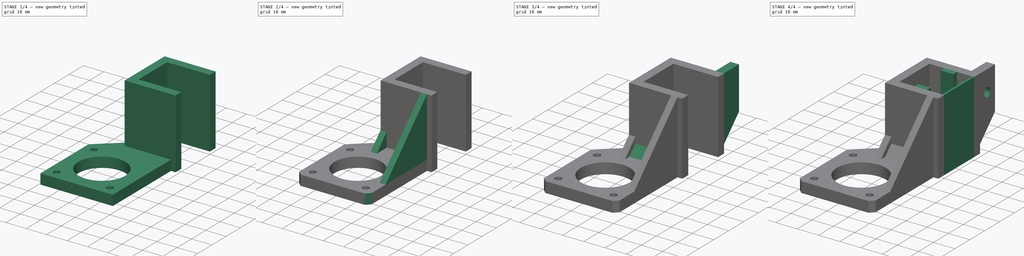
[diagram: build sequence overview — one tinted view per stage of 4, left to right]
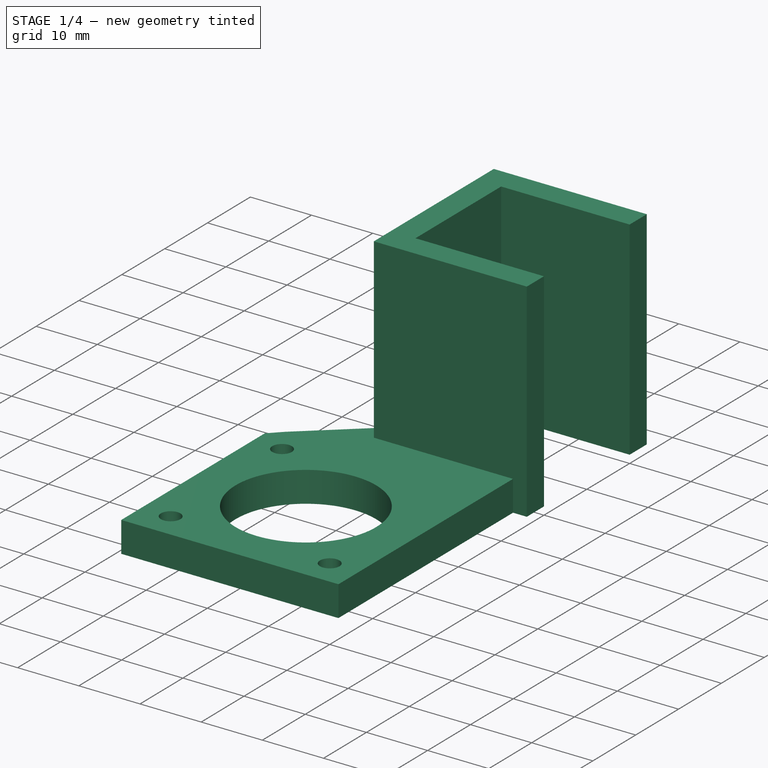
[diagram: stage 1 of 4 — iso view after this stage's code; geometry added in this stage tinted green]
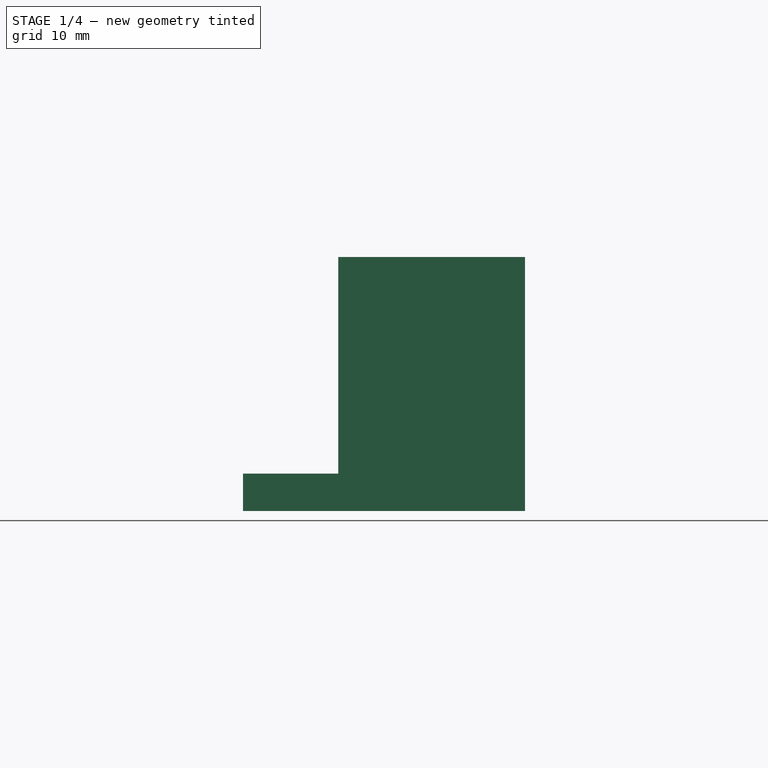
[diagram: stage 1 of 4 — front view after this stage's code; geometry added in this stage tinted green]
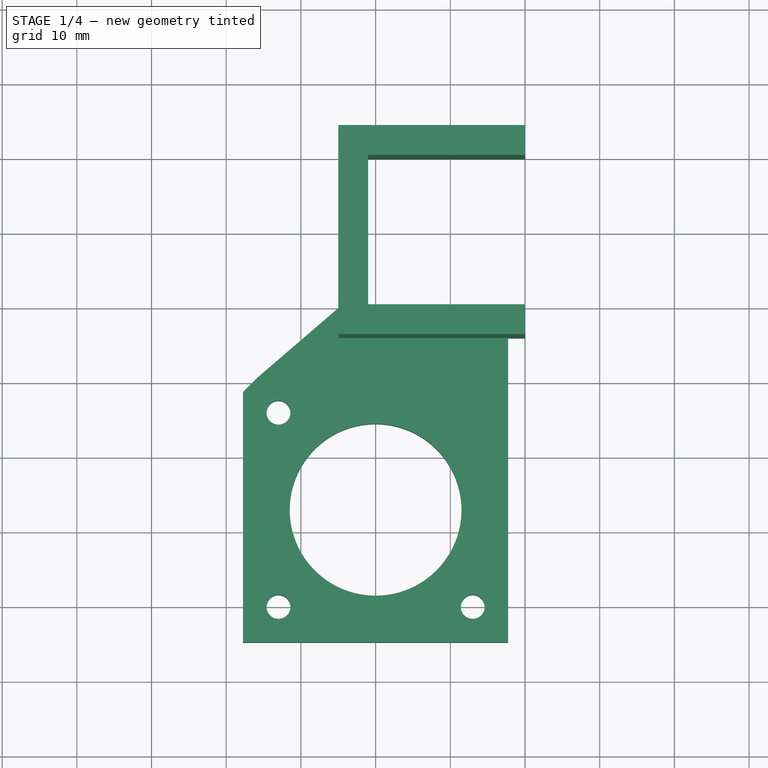
[diagram: stage 1 of 4 — top view after this stage's code; geometry added in this stage tinted green]
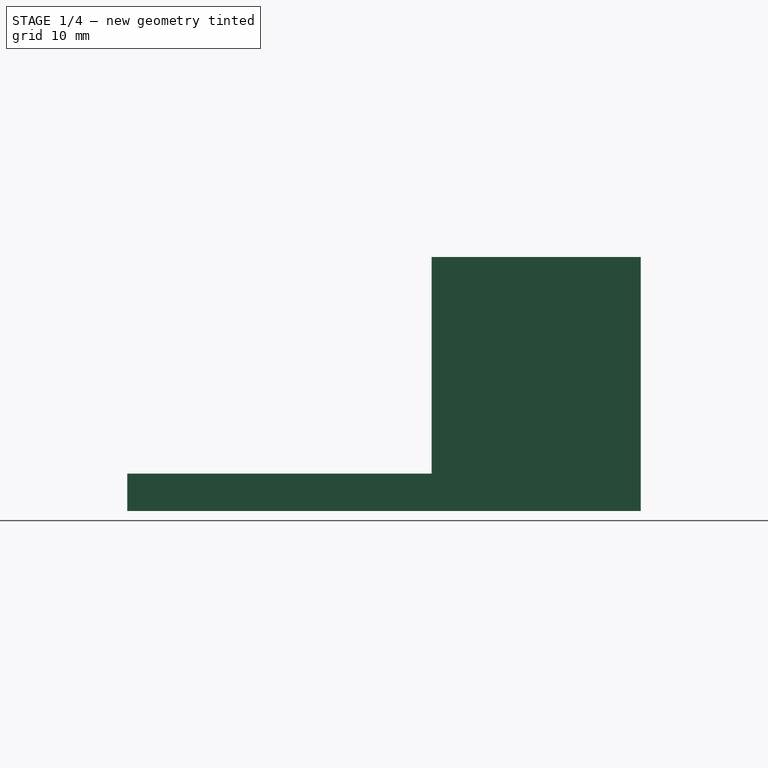
[diagram: stage 1 of 4 — right view after this stage's code; geometry added in this stage tinted green]
FCSTD DOCUMENT  (FreeCAD 0.14R3692 (Git))
Label: z-motor
License: CC-BY 3.0
LicenseURL: http://creativecommons.org/licenses/by/3.0/
objects: Sketcher::SketchObject×7, Part::Feature×6, PartDesign::Pad×5, Part::Chamfer×2, PartDesign::Pocket×2, Part::Box×1, Part::Thickness×1, PartDesign::Draft×1, App::DocumentObjectGroup×1
note: 32 computed .brp shape members not serialized (recipe doc carries the construction recipe); baked Part::Feature solids carry a one-line shape summary decoded from their .brp

FEATURE [Part::Box] Box  label="body-cube"
  Height = 34
  Length = 21
  Placement = pos=(-1,0,0) rot=(0,0,1;0rad)
  Width = 20
FEATURE [Part::Thickness] Thickness  label="body-thickness"
  Faces = -> Box [Face2,Face6,Face5]
  Intersection = false
  Join = 2
  Mode = 0
  SelfIntersection = false
  Value = 4
FEATURE [Sketcher::SketchObject] Sketch  label="motor-holder-sketch"
  Placement = pos=(0,0,0) rot=(1,0,0;3.14159rad)
  Support = -> Thickness [Face7]
  sketch-geometry (11):
    g0: Circle CenterX=0 CenterY=27 CenterZ=0 NormalX=0 NormalY=0 NormalZ=1 Radius=11.5
    g1: LineSegment StartX=-17.75 StartY=44.75 StartZ=0 EndX=17.75 EndY=44.75 EndZ=0
    g2: LineSegment StartX=17.75 StartY=44.75 StartZ=0 EndX=17.75 EndY=0 EndZ=0
    g3: LineSegment StartX=17.75 StartY=0 StartZ=0 EndX=-5 EndY=0 EndZ=0
    g4: LineSegment StartX=-17.75 StartY=11.25 StartZ=0 EndX=-17.75 EndY=44.75 EndZ=0
    g5: Circle [constr] CenterX=0 CenterY=27 CenterZ=0 NormalX=0 NormalY=0 NormalZ=1 Radius=17.75
    g6: LineSegment StartX=-5 StartY=0 StartZ=0 EndX=-15.75 EndY=9.25 EndZ=0
    g7: Circle CenterX=-13 CenterY=14 CenterZ=0 NormalX=0 NormalY=0 NormalZ=1 Radius=1.6
    g8: Circle CenterX=-13 CenterY=40 CenterZ=0 NormalX=0 NormalY=0 NormalZ=1 Radius=1.6
    g9: Circle CenterX=13 CenterY=40 CenterZ=0 NormalX=0 NormalY=0 NormalZ=1 Radius=1.6
    g10: LineSegment StartX=-17.75 StartY=11.25 StartZ=0 EndX=-15.75 EndY=9.25 EndZ=0
  constraints (32):
    c: PointOnObject(g0,g-2)
    c: DistanceY(g-1,g0) = 27
    c: Radius(g0) = 11.5
    c: Coincident(g1,g2)
    c: Coincident(g2,g3)
    c: Coincident(g4,g1)
    c: Horizontal(g1)
    c: Horizontal(g3)
    c: Vertical(g2)
    c: Vertical(g4)
    c: Coincident(g5,g0)
    c: Radius(g5) = 17.75
    c: Tangent(g1,g5)
    c: Tangent(g2,g5)
    c: Tangent(g4,g5)
    c: PointOnObject(g-1,g3)
    c: Coincident(g6,g3)
    c: DistanceX(g-1,g3) = -5
    c: DistanceX(g7,g0) = 13
    c: DistanceY(g7,g0) = 13
    c: Radius(g7) = 1.6
    c: DistanceX(g8,g0) = 13
    c: DistanceY(g8,g0) = -13
    c: DistanceX(g9,g0) = -13
    c: DistanceY(g9,g0) = -13
    c: Equal(g7,g8)
    c: Equal(g8,g9)
    c: Coincident(g10,g6)
    c: Coincident(g10,g4)
    c: Angle(g10) = -0.785398
    c: DistanceY(g4,g6) = -2
    c: DistanceY(g4) = 33.5
FEATURE [PartDesign::Pad] Pad  label="motor-holder-pad"
  Length = 5
  Length2 = 100
  Reversed = true
  Sketch = -> Sketch
  Type = 0
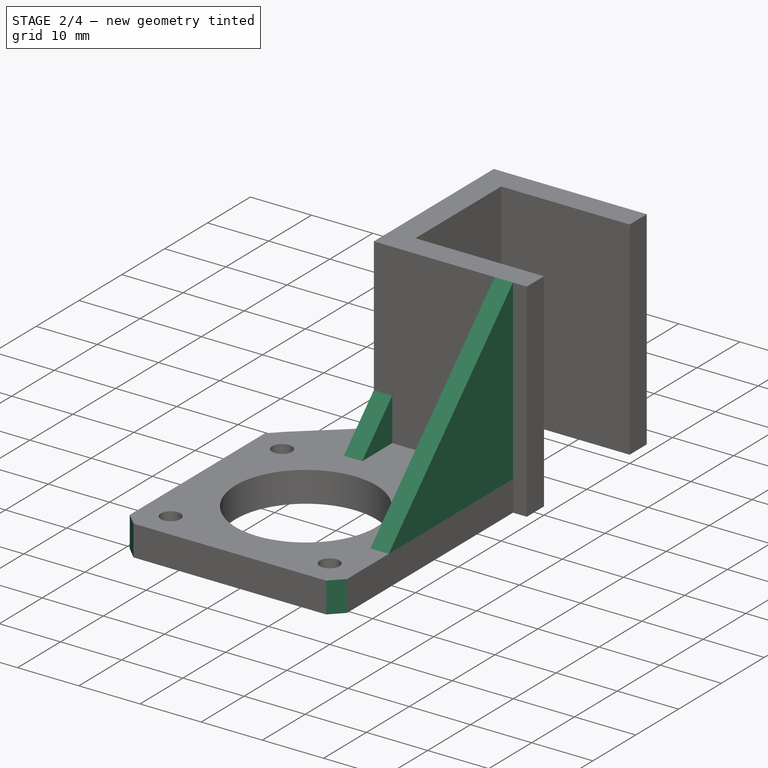
[diagram: stage 2 of 4 — iso view after this stage's code; geometry added in this stage tinted green]
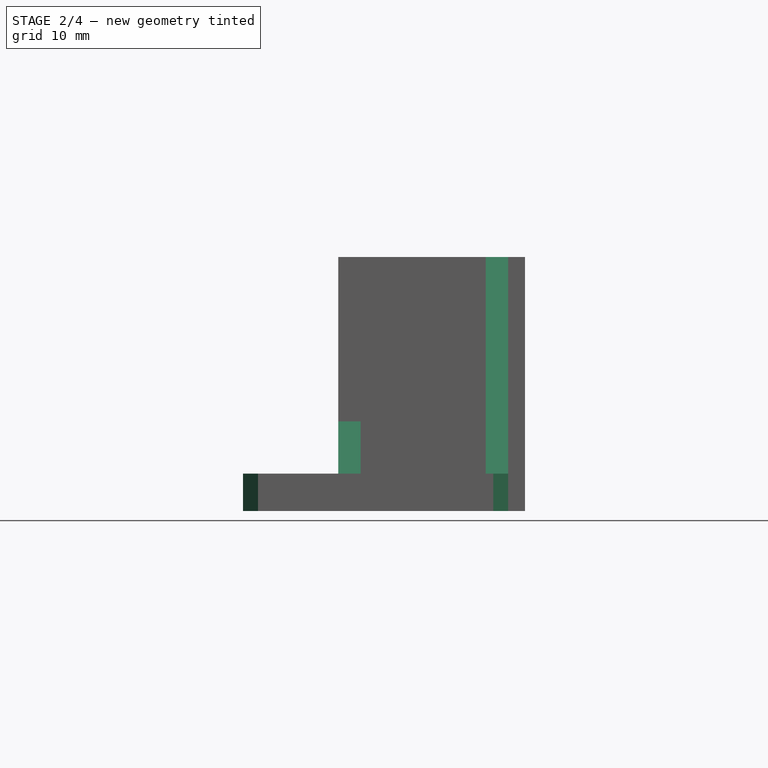
[diagram: stage 2 of 4 — front view after this stage's code; geometry added in this stage tinted green]
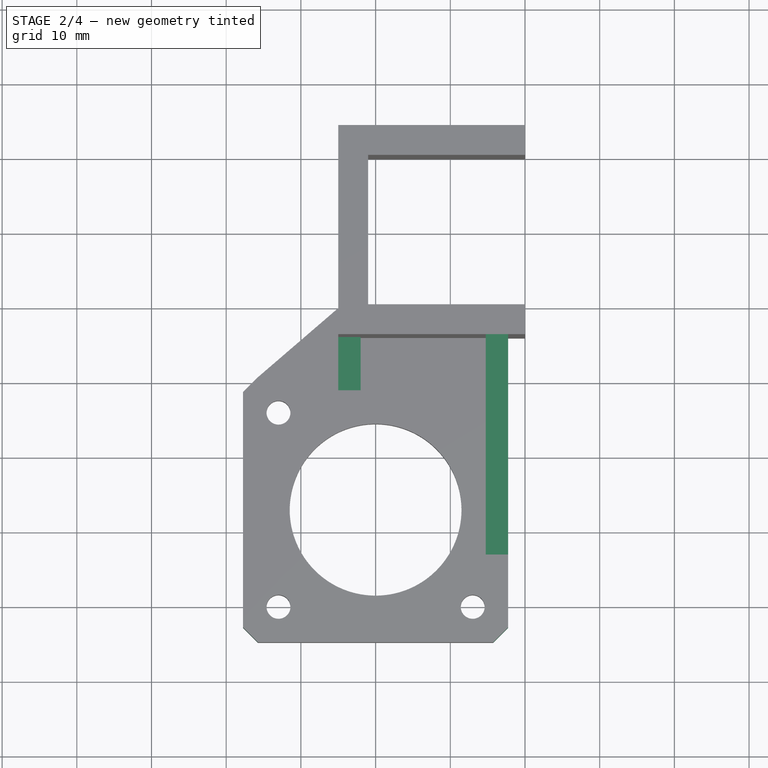
[diagram: stage 2 of 4 — top view after this stage's code; geometry added in this stage tinted green]
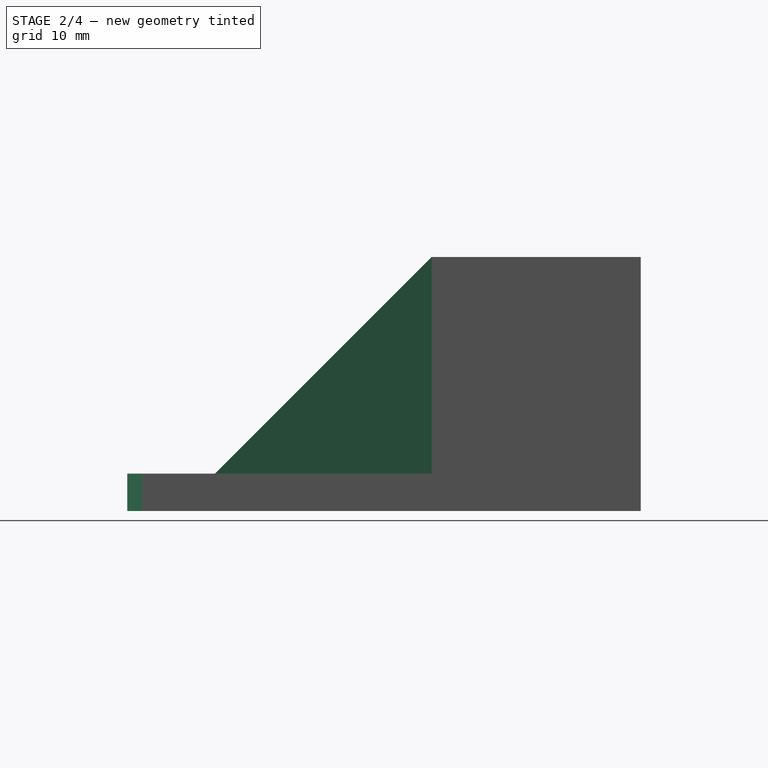
[diagram: stage 2 of 4 — right view after this stage's code; geometry added in this stage tinted green]
FEATURE [Part::Chamfer] Chamfer001  label="motor-holder-chamfer"
  Base = -> Pad
  Edges = 2 edges r=2: [Edge56,Edge58]
FEATURE [Sketcher::SketchObject] Sketch002  label="motor-holder-reinforced-fin-sketch"
  Placement = pos=(17.75,0,0) rot=(0.57735,0.57735,0.57735;2.0944rad)
  Support = -> Chamfer001 [Face9]
  sketch-geometry (3):
    g0: LineSegment StartX=-33 StartY=5 StartZ=0 EndX=-4 EndY=5 EndZ=0
    g1: LineSegment StartX=-4 StartY=5 StartZ=0 EndX=-4 EndY=34 EndZ=0
    g2: LineSegment StartX=-4 StartY=34 StartZ=0 EndX=-33 EndY=5 EndZ=0
  constraints (9):
    c: Coincident(g0,g1)
    c: Coincident(g1,g2)
    c: Coincident(g0,g2)
    c: Vertical(g1)
    c: DistanceY(g-1,g0) = 5
    c: Horizontal(g0)
    c: DistanceX(g-1,g0) = -4
    c: DistanceY(g1) = 29
    c: Equal(g0,g1)
FEATURE [PartDesign::Pad] Pad006  label="motor-holder-reinforced-fin-pad"
  Length = 3
  Length2 = 100
  Reversed = true
  Sketch = -> Sketch002
  Type = 0
FEATURE [Sketcher::SketchObject] Sketch004  label="motor-holder-reinforced-fin-extra-sketch"
  Placement = pos=(-5,0,0) rot=(0.57735,-0.57735,-0.57735;2.0944rad)
  Support = -> Pad006 [Face18]
  sketch-geometry (3):
    g0: LineSegment StartX=4 StartY=5 StartZ=0 EndX=11 EndY=5 EndZ=0
    g1: LineSegment StartX=4 StartY=12 StartZ=0 EndX=4 EndY=5 EndZ=0
    g2: LineSegment StartX=4 StartY=12 StartZ=0 EndX=11 EndY=5 EndZ=0
  constraints (9):
    c: Coincident(g1,g2)
    c: Coincident(g0,g2)
    c: Coincident(g0,g1)
    c: DistanceY(g-1,g0) = 5
    c: Vertical(g1)
    c: Horizontal(g0)
    c: DistanceY(g1) = -7
    c: Equal(g0,g1)
    c: DistanceX(g-1,g0) = 4
FEATURE [PartDesign::Pad] Pad007  label="motor-holder-reinforced-fin-extra-pad"
  Length = 3
  Length2 = 100
  Reversed = true
  Sketch = -> Sketch004
  Type = 0
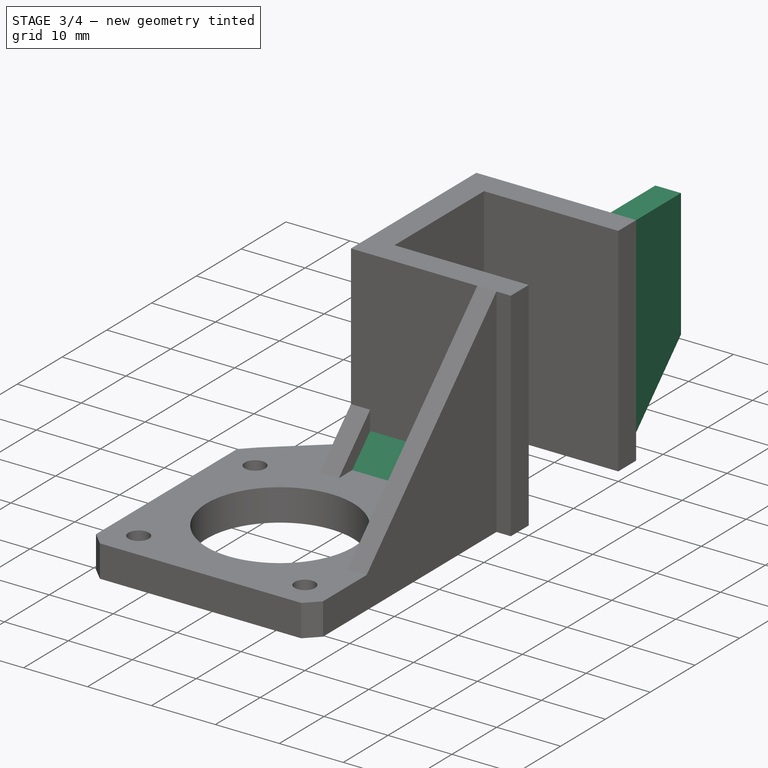
[diagram: stage 3 of 4 — iso view after this stage's code; geometry added in this stage tinted green]
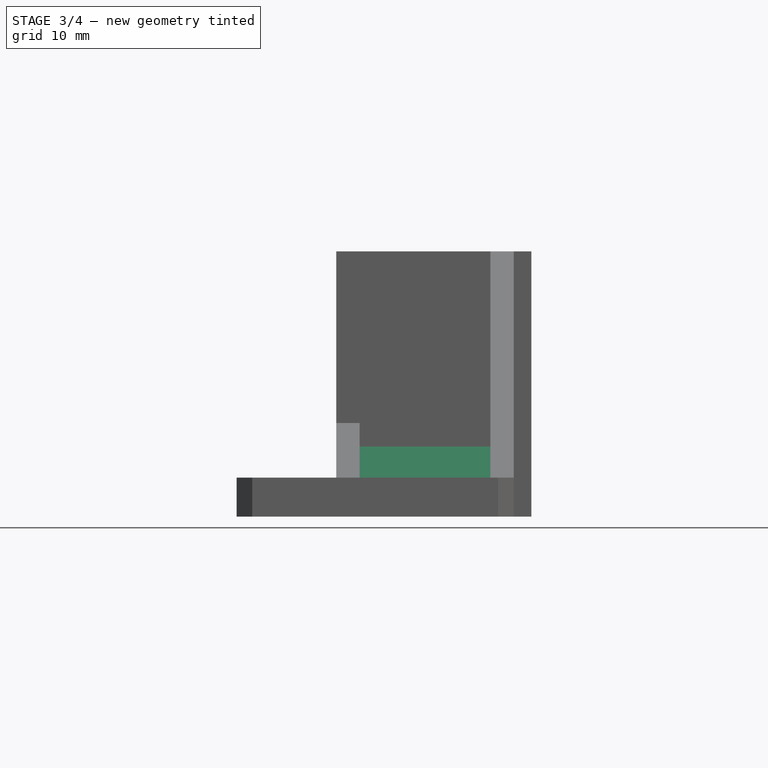
[diagram: stage 3 of 4 — front view after this stage's code; geometry added in this stage tinted green]
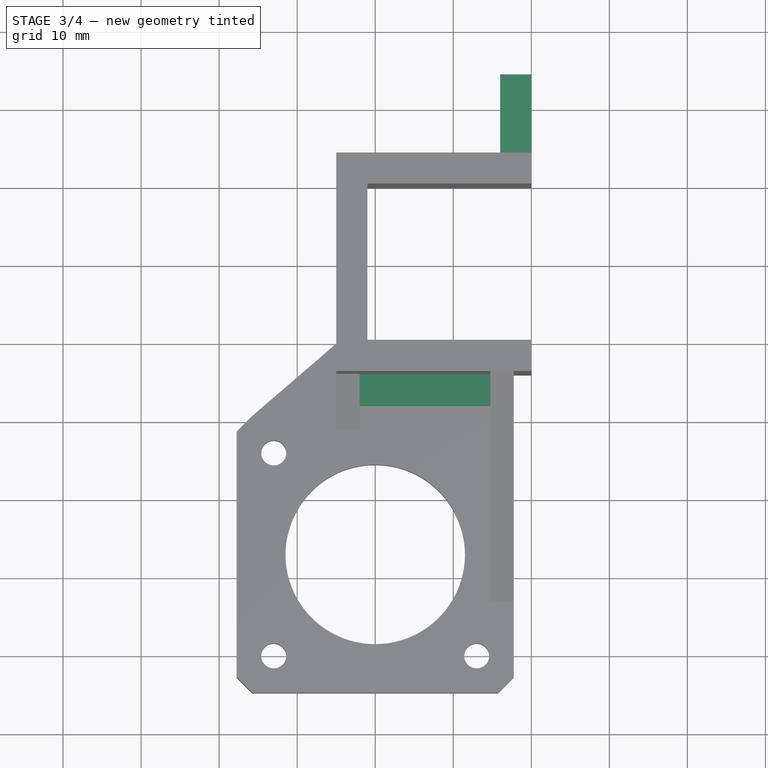
[diagram: stage 3 of 4 — top view after this stage's code; geometry added in this stage tinted green]
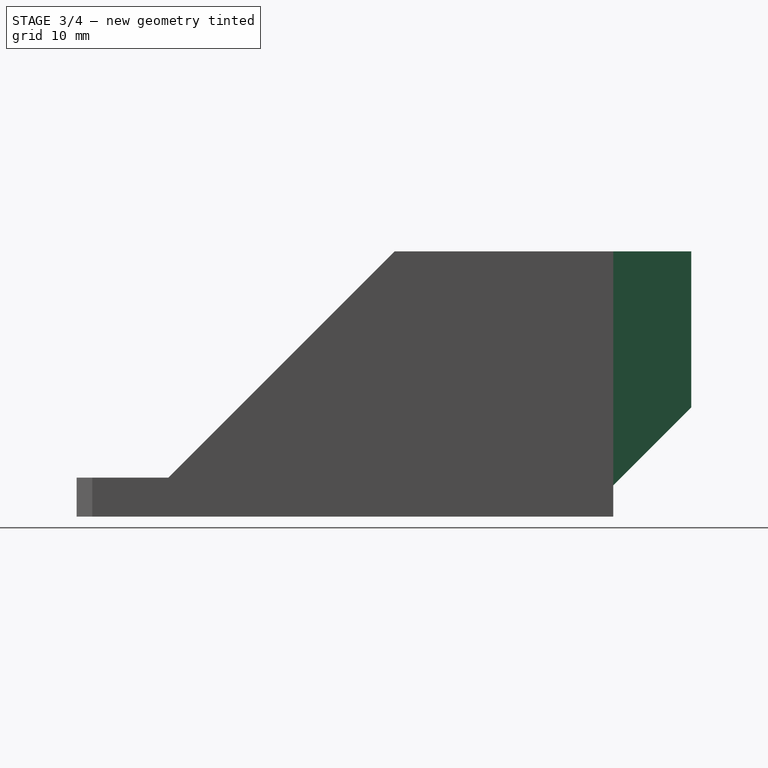
[diagram: stage 3 of 4 — right view after this stage's code; geometry added in this stage tinted green]
FEATURE [Part::Chamfer] Chamfer  label="motor-holder-reinforced-chamfer"
  Base = -> Pad007
  Edges = 1 edges r=4: [Edge26]
FEATURE [Sketcher::SketchObject] Sketch005  label="slot-left-top-fin-sketch"
  Placement = pos=(0,24,0) rot=(0,0.707107,0.707107;3.14159rad)
  Support = -> Chamfer [Face26]
  sketch-geometry (4):
    g0: LineSegment StartX=-20 StartY=4 StartZ=0 EndX=-16 EndY=4 EndZ=0
    g1: LineSegment StartX=-16 StartY=4 StartZ=0 EndX=-16 EndY=34 EndZ=0
    g2: LineSegment StartX=-16 StartY=34 StartZ=0 EndX=-20 EndY=34 EndZ=0
    g3: LineSegment StartX=-20 StartY=34 StartZ=0 EndX=-20 EndY=4 EndZ=0
  constraints (12):
    c: Coincident(g2,g3)
    c: Coincident(g0,g3)
    c: Coincident(g1,g2)
    c: Coincident(g0,g1)
    c: Horizontal(g2)
    c: Horizontal(g0)
    c: Vertical(g1)
    c: Vertical(g3)
    c: DistanceX(g2) = -4
    c: DistanceY(g3) = -30
    c: DistanceY(g-1,g2) = 34
    c: DistanceX(g-1,g2) = -20
FEATURE [PartDesign::Pad] Pad003  label="slot-left-top-fin-pad"
  Length = 10
  Length2 = 100
  Sketch = -> Sketch005
  Type = 0
FEATURE [PartDesign::Draft] Draft  label="slot-left-top-fin-draft"
  Angle = 45
  Base = -> Pad003 [Face35]
  NeutralPlane = -> Pad003 [Face26]
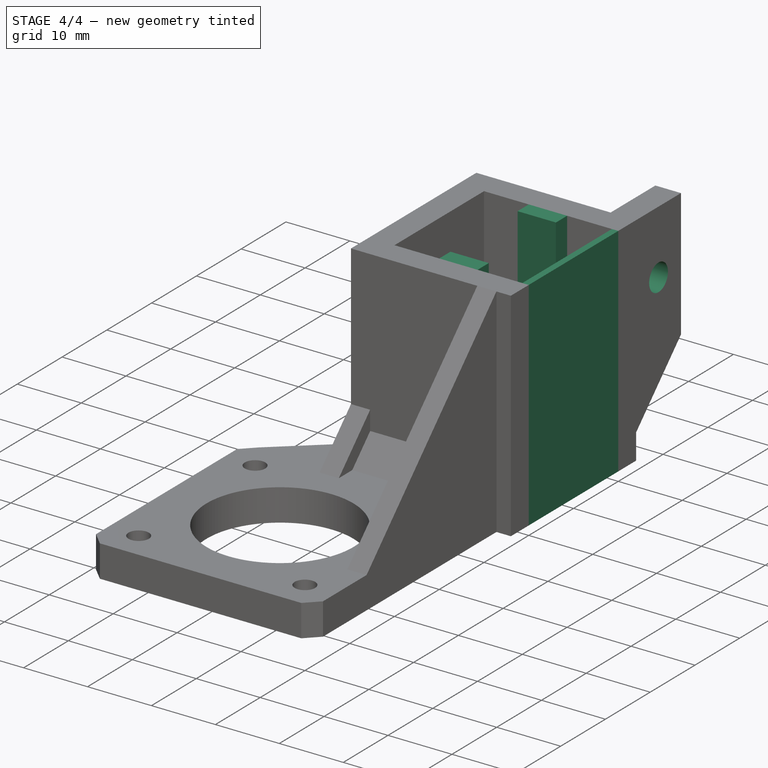
[diagram: stage 4 of 4 — iso view after this stage's code; geometry added in this stage tinted green]
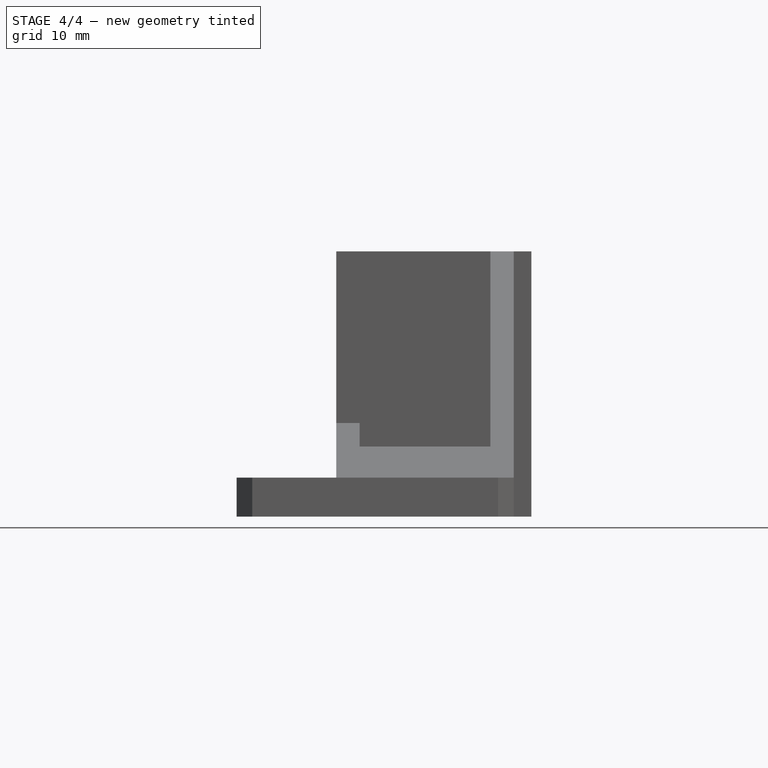
[diagram: stage 4 of 4 — front view after this stage's code; geometry added in this stage tinted green]
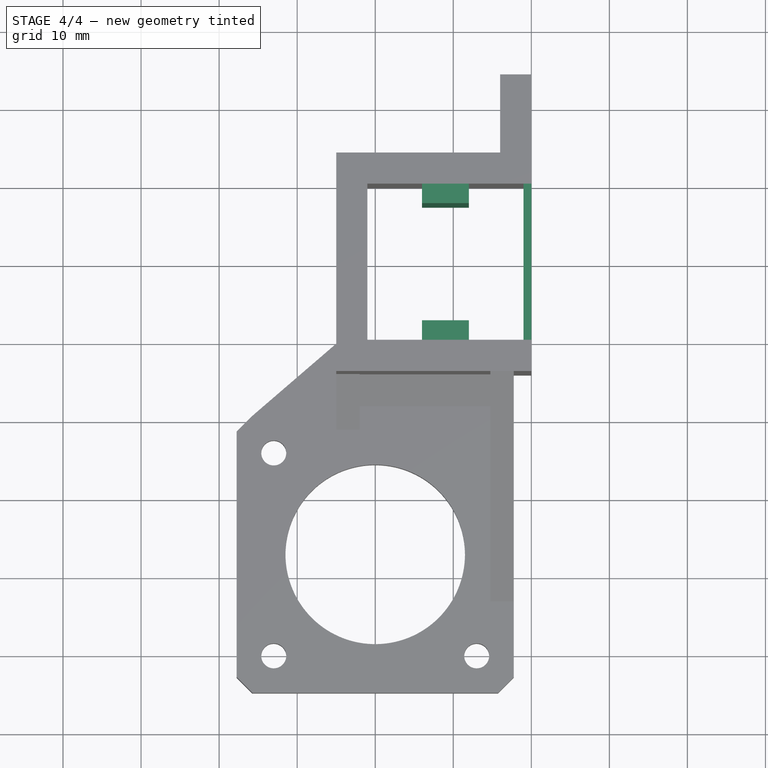
[diagram: stage 4 of 4 — top view after this stage's code; geometry added in this stage tinted green]
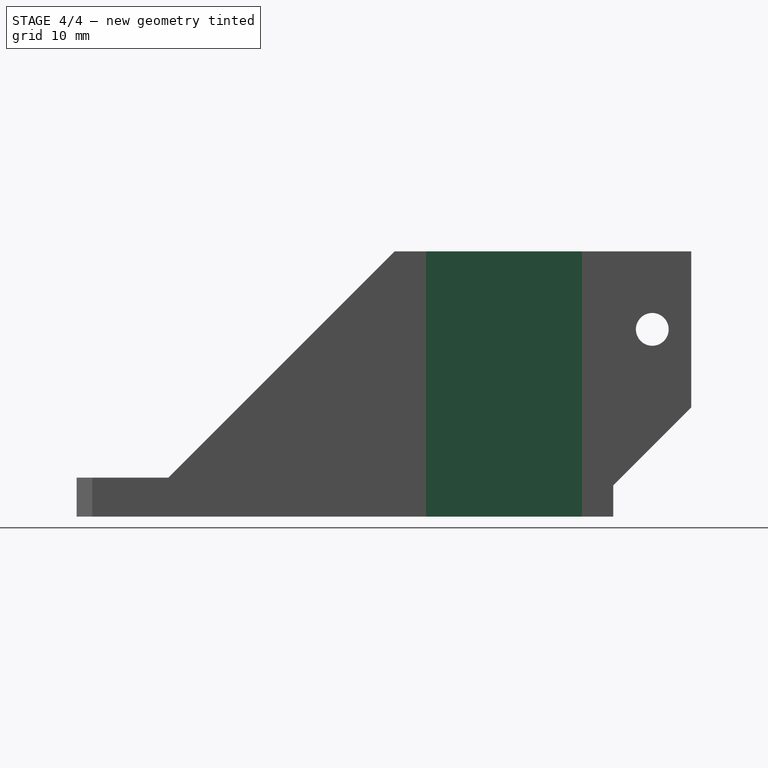
[diagram: stage 4 of 4 — right view after this stage's code; geometry added in this stage tinted green]
FEATURE [Sketcher::SketchObject] Sketch008  label="slot-left-guides-sketch"
  Placement = pos=(0,0,34) rot=(0,0,1;0rad)
  Support = -> Draft [Face21]
  sketch-geometry (12):
    g0: LineSegment StartX=6 StartY=20 StartZ=0 EndX=12 EndY=20 EndZ=0
    g1: LineSegment StartX=12 StartY=20 StartZ=0 EndX=12 EndY=17.5 EndZ=0
    g2: LineSegment StartX=12 StartY=17.5 StartZ=0 EndX=6 EndY=17.5 EndZ=0
    g3: LineSegment StartX=6 StartY=17.5 StartZ=0 EndX=6 EndY=20 EndZ=0
    g4: LineSegment StartX=6 StartY=2.5 StartZ=0 EndX=12 EndY=2.5 EndZ=0
    g5: LineSegment StartX=12 StartY=2.5 StartZ=0 EndX=12 EndY=0 EndZ=0
    g6: LineSegment StartX=12 StartY=0 StartZ=0 EndX=6 EndY=0 EndZ=0
    g7: LineSegment StartX=6 StartY=0 StartZ=0 EndX=6 EndY=2.5 EndZ=0
    g8: LineSegment StartX=19 StartY=20 StartZ=0 EndX=20 EndY=20 EndZ=0
    g9: LineSegment StartX=20 StartY=20 StartZ=0 EndX=20 EndY=0 EndZ=0
    g10: LineSegment StartX=20 StartY=0 StartZ=0 EndX=19 EndY=0 EndZ=0
    g11: LineSegment StartX=19 StartY=0 StartZ=0 EndX=19 EndY=20 EndZ=0
  constraints (36):
    c: Coincident(g0,g1)
    c: Coincident(g1,g2)
    c: Coincident(g2,g3)
    c: Coincident(g3,g0)
    c: Horizontal(g0)
    c: Horizontal(g2)
    c: Vertical(g1)
    c: Vertical(g3)
    c: Coincident(g4,g5)
    c: Coincident(g5,g6)
    c: Coincident(g6,g7)
    c: Coincident(g7,g4)
    c: Horizontal(g4)
    c: Horizontal(g6)
    c: Vertical(g5)
    c: Vertical(g7)
    c: DistanceY(g7) = 2.5
    c: DistanceX(g4) = 6
    c: DistanceX(g2) = -6
    c: DistanceY(g3) = 2.5
    c: PointOnObject(g6,g-1)
    c: DistanceX(g-1,g6) = 6
    c: DistanceX(g-1,g0) = 6
    c: DistanceY(g-1,g0) = 20
    c: Coincident(g8,g9)
    c: Coincident(g9,g10)
    c: Coincident(g10,g11)
    c: Coincident(g11,g8)
    c: Horizontal(g8)
    c: Horizontal(g10)
    c: Vertical(g9)
    c: Vertical(g11)
    c: DistanceX(g10) = -1
    c: DistanceY(g9) = -20
    c: DistanceX(g-1,g10) = 19
    c: PointOnObject(g10,g-1)
FEATURE [PartDesign::Pad] Pad004  label="slot-left-guides-pocket"
  Length = 34
  Length2 = 100
  Reversed = true
  Sketch = -> Sketch008
  Type = 0
FEATURE [Sketcher::SketchObject] Sketch007  label="slot-left-screw-hole-sketch"
  Placement = pos=(-5,0,0) rot=(0.57735,-0.57735,-0.57735;2.0944rad)
  Support = -> Pad004 [Face11]
  sketch-geometry (1):
    g0: Circle CenterX=-10 CenterY=17 CenterZ=0 NormalX=0 NormalY=0 NormalZ=1 Radius=2.1
  constraints (3):
    c: DistanceX(g-1,g0) = -10
    c: DistanceY(g-1,g0) = 17
    c: Radius(g0) = 2.1
FEATURE [PartDesign::Pocket] Pocket003  label="slot-left-screw-hole-pocket"
  Length = 4
  Sketch = -> Sketch007
  Type = 0
FEATURE [Sketcher::SketchObject] Sketch006  label="slot-left-top-screw-hole-sketch"
  Placement = pos=(20,0,0) rot=(0.57735,0.57735,0.57735;2.0944rad)
  Support = -> Pocket003 [Face55]
  sketch-geometry (1):
    g0: Circle CenterX=29 CenterY=24 CenterZ=0 NormalX=0 NormalY=0 NormalZ=1 Radius=2.1
  constraints (3):
    c: Radius(g0) = 2.1
    c: DistanceY(g-1,g0) = 24
    c: DistanceX(g-1,g0) = 29
FEATURE [PartDesign::Pocket] Pocket002  label="slot-left-top-screw-hole-pocket"
  Length = 4
  Sketch = -> Sketch006
  Type = 0
FEATURE [Part::Feature] Part__Feature  label="extrusion-p20n6b-300-left"
  Placement = pos=(9,10,-46) rot=(0,0,1;0rad)
  shape: bbox 20 x 20 x 300 mm, 154 faces (baked)
FEATURE [Part::Feature] Part__Feature001  label="extrusion-p20n6b-300-top-left"
  Placement = pos=(30,-176,24) rot=(-1,0,0;1.5708rad)
  shape: bbox 20 x 300 x 20 mm, 154 faces (baked)
FEATURE [Part::Feature] Part__Feature002  label="threaded-rod-05-230-z-left"
  Placement = pos=(0,-27,24.5) rot=(0,0,1;0rad)
  shape: bbox 5 x 5 x 230 mm, 3 faces (baked)
FEATURE [Part::Feature] Part__Feature003  label="nema14-stepper-motor-z-left"
  Placement = pos=(0,-27,0) rot=(0,0,-1;1.5708rad)
  shape: bbox 35.05 x 36.32 x 61.75 mm, 100 faces (baked)
FEATURE [Part::Feature] Pocket002002  label="z-motor-left"
  shape: bbox 37.75 x 78.75 x 34 mm, 41 faces (baked)
FEATURE [Part::Feature] Part__Feature006  label="hinge-outer-left"
  shape: bbox 35 x 69 x 46 mm, 41 faces (baked)
FEATURE [App::DocumentObjectGroup] Grupo  label="aux"
  Group = -> [Part__Feature,Part__Feature001,Part__Feature002,Part__Feature003,Part__Feature006]
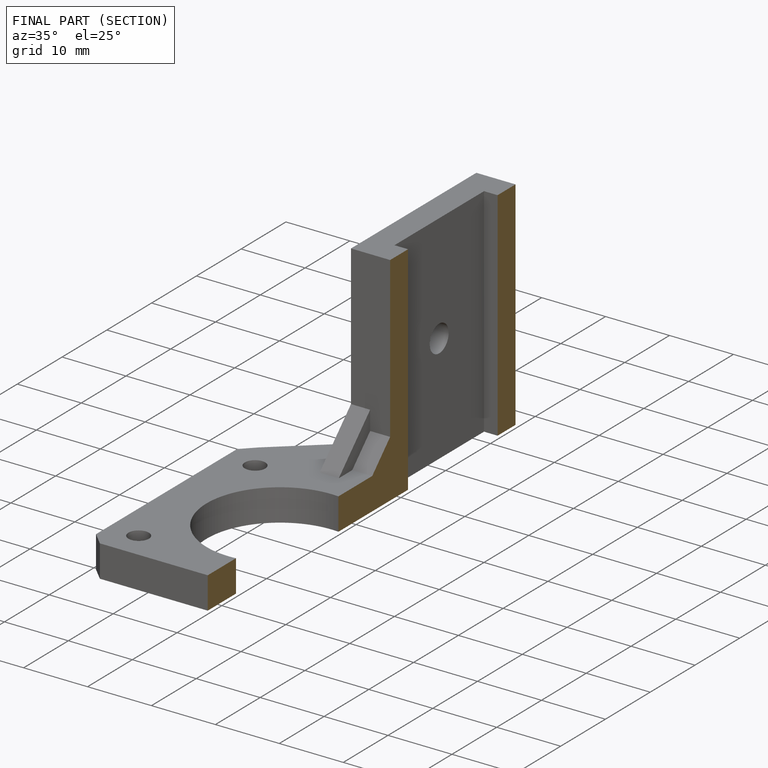
[diagram: finished part — half-section view (interior)]
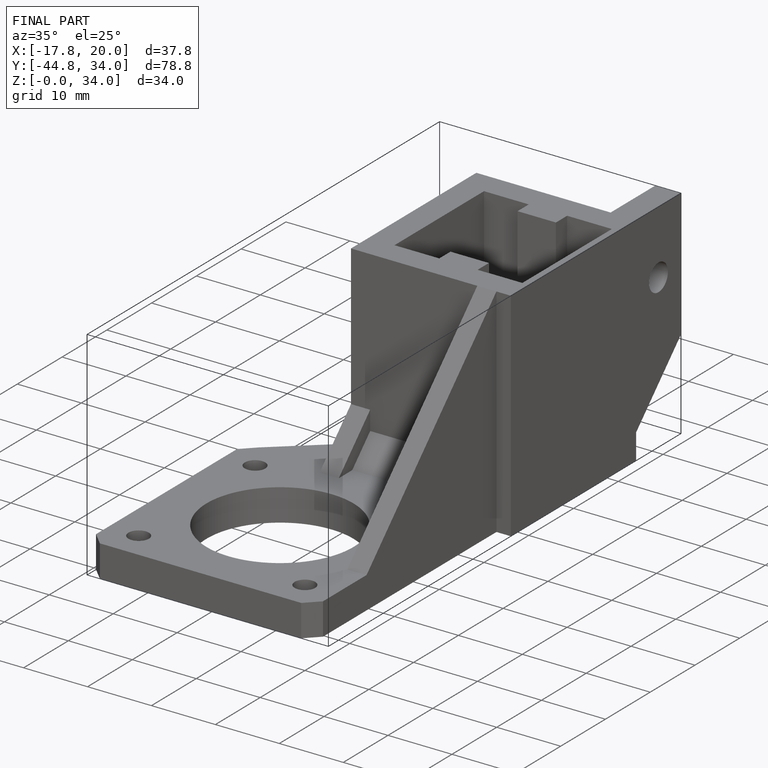
[diagram: finished part — iso view with bounding-box wireframe]
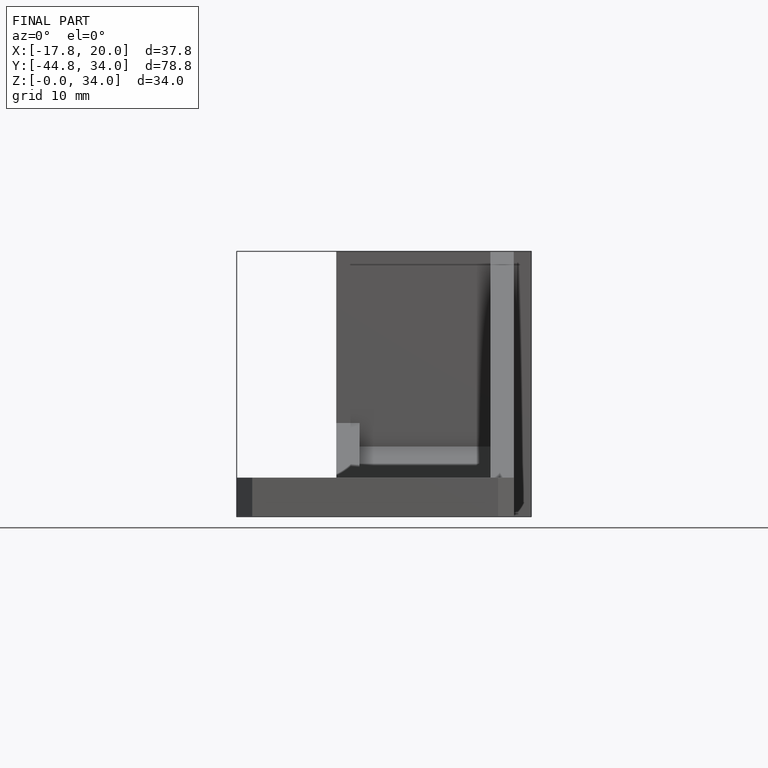
[diagram: finished part — front view with bounding-box wireframe]
